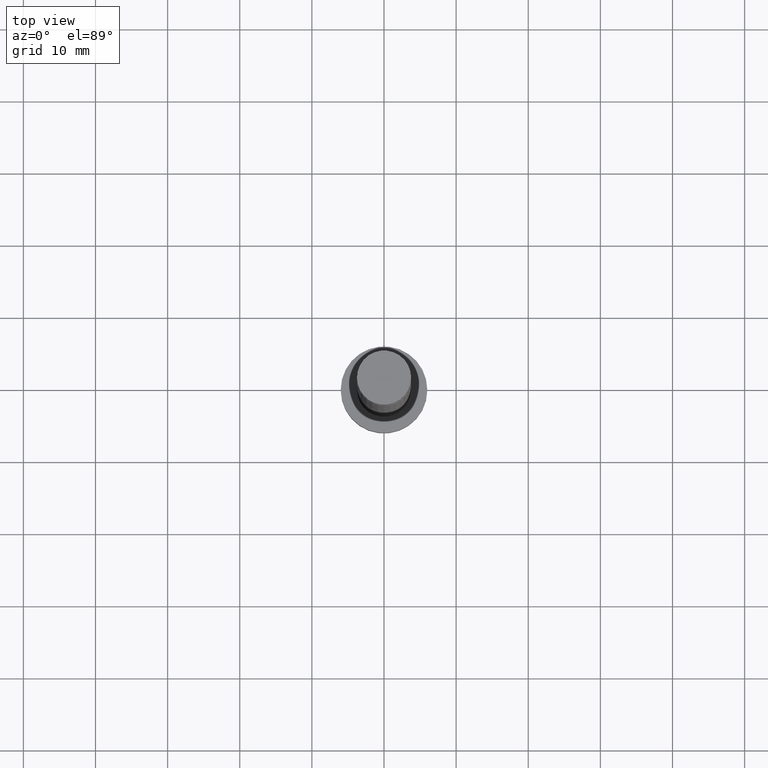
[diagram: clean part render]
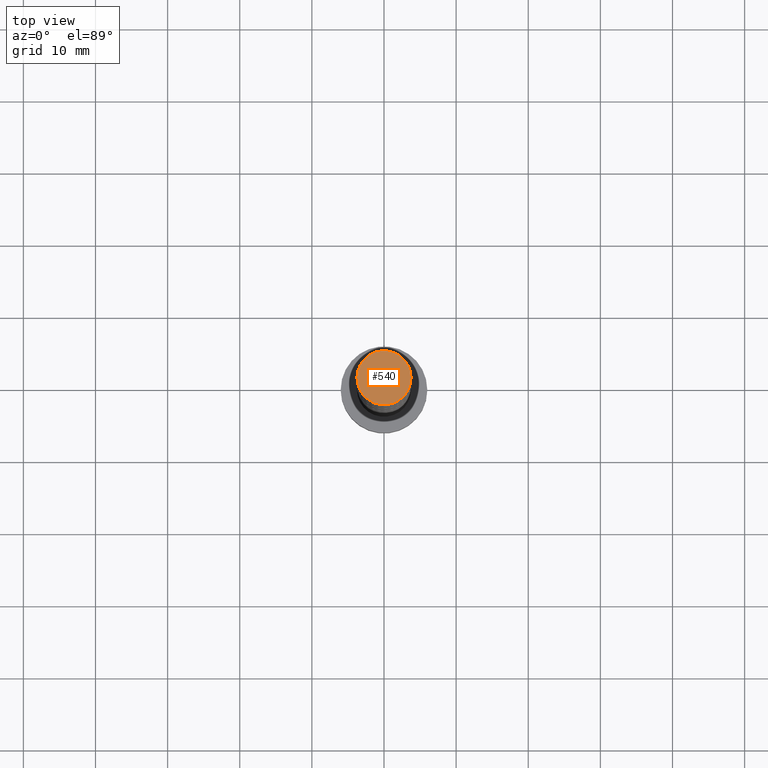
[diagram: same view with one face highlighted and labeled with its STEP entity id]
A machine part, top view. The second image highlights one B-rep face of the part: STEP entity #540.
In plain terms, the highlighted planar face has unit normal (0, 0, 1).
Its self-contained STEP definition (entity closure, byte-faithful):
#38 = VERTEX_POINT ( 'NONE', #621 ) ;
#100 = DIRECTION ( 'NONE',  ( 0.000000000000000000, 0.000000000000000000, 1.000000000000000000 ) ) ;
#123 = DIRECTION ( 'NONE',  ( 1.000000000000000000, 0.000000000000000000, 0.000000000000000000 ) ) ;
#154 = CIRCLE ( 'NONE', #1039, 3.750000000000000000 ) ;
#161 = EDGE_LOOP ( 'NONE', ( #528, #1320 ) ) ;
#234 = CIRCLE ( 'NONE', #1057, 3.750000000000000000 ) ;
#485 = DIRECTION ( 'NONE',  ( 1.000000000000000000, 0.000000000000000000, -0.000000000000000000 ) ) ;
#499 = AXIS2_PLACEMENT_3D ( 'NONE', #1040, #100, #485 ) ;
#528 = ORIENTED_EDGE ( 'NONE', *, *, #1327, .T. ) ;
#540 = ADVANCED_FACE ( 'NONE', ( #889 ), #902, .T. ) ;
#561 = DIRECTION ( 'NONE',  ( 0.000000000000000000, 0.000000000000000000, 1.000000000000000000 ) ) ;
#621 = CARTESIAN_POINT ( 'NONE',  ( 3.750000000000000000, 4.592425496802573972E-16, 100.0000000000000000 ) ) ;
#627 = VERTEX_POINT ( 'NONE', #1231 ) ;
#744 = DIRECTION ( 'NONE',  ( 1.000000000000000000, 0.000000000000000000, 0.000000000000000000 ) ) ;
#814 = CARTESIAN_POINT ( 'NONE',  ( 0.000000000000000000, 0.000000000000000000, 100.0000000000000000 ) ) ;
#870 = DIRECTION ( 'NONE',  ( 0.000000000000000000, 0.000000000000000000, 1.000000000000000000 ) ) ;
#889 = FACE_OUTER_BOUND ( 'NONE', #161, .T. ) ;
#898 = EDGE_CURVE ( 'NONE', #38, #627, #234, .T. ) ;
#902 = PLANE ( 'NONE',  #499 ) ;
#1039 = AXIS2_PLACEMENT_3D ( 'NONE', #814, #561, #123 ) ;
#1040 = CARTESIAN_POINT ( 'NONE',  ( 0.000000000000000000, 0.000000000000000000, 100.0000000000000000 ) ) ;
#1057 = AXIS2_PLACEMENT_3D ( 'NONE', #1467, #870, #744 ) ;
#1231 = CARTESIAN_POINT ( 'NONE',  ( -3.750000000000000000, 0.000000000000000000, 100.0000000000000000 ) ) ;
#1320 = ORIENTED_EDGE ( 'NONE', *, *, #898, .T. ) ;
#1327 = EDGE_CURVE ( 'NONE', #627, #38, #154, .T. ) ;
#1467 = CARTESIAN_POINT ( 'NONE',  ( 0.000000000000000000, 0.000000000000000000, 100.0000000000000000 ) ) ;